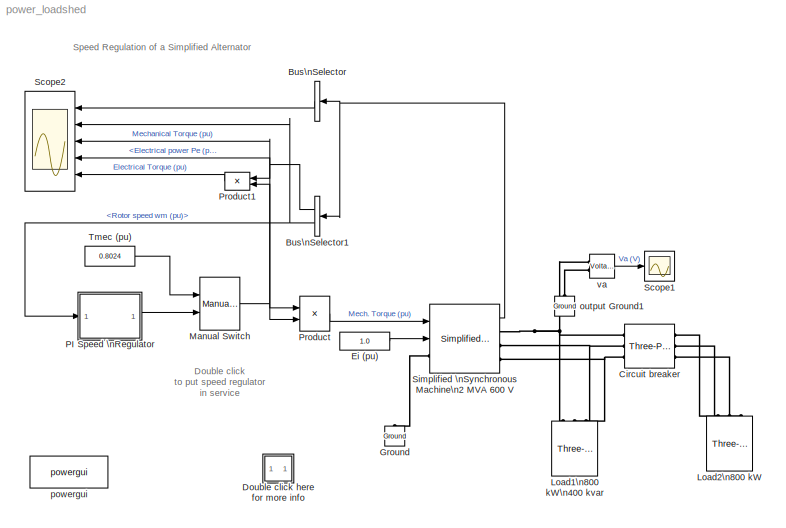
MODEL power_loadshed
KIND model
BLOCK [BusSelector] Bus\nSelector
  DialogController = Simulink.DDGSource_Bus
  MuxedOutput = on
  OutputSignals = Stator current is_a (pu),Stator current is_b (pu),Stator current is_c (pu)
  Ports = [1, 1]
BLOCK [BusSelector] Bus\nSelector1
  DialogController = Simulink.DDGSource_Bus
  OutputSignals = Electrical power Pe (pu),Rotor speed wm (pu)
  Ports = [1, 2]
BLOCK [Reference] Circuit breaker  REF=powerlib/Elements/Three-Phase Breaker
  AttributesFormatString = \\n
  BreakerResistance = 1e-4
  External = off
  InitialState = closed
  Measurements = None
  Ports = [0, 0, 0, 0, 0, 3, 3]
  ShowPortLabels = on
  SnubberCapacitance = 0
  SnubberResistance = inf
  SourceBlock = powerlib/Elements/Three-Phase Breaker
  SourceType = Three-Phase Breaker
  SwitchA = on
  SwitchB = on
  SwitchC = on
  SwitchTimes = [ 0.2 0.7*100 ]
BLOCK [SubSystem] Double click here for more info
  MaskDisplay = disp('?')
  MaskIconFrame = on
  MaskIconOpaque = on
  MaskIconRotate = none
  MaskIconUnits = autoscale
  MinAlgLoopOccurrences = off
  Ports = []
  RTWSystemCode = Auto
  TreatAsAtomicUnit = off
BLOCK [Constant] Ei (pu)
  Value = 1.0
BLOCK [Reference] Ground  REF=powerlib/Elements/Ground
  AttributesFormatString = \\n
  LConnTagsString = a
  LeftPortType = p1
  PhysicalDomain = powersysdomain
  Ports = [0, 0, 0, 0, 0, 1]
  RightPortType = p1
  SourceBlock = powerlib/Elements/Ground
  SourceType = Ground
  SubClassName = unknown
BLOCK [Reference] Load1\n800 kW\n400 kvar  REF=powerlib/Elements/Three-Phase\nParallel RLC Load
  ActivePower = 800e3
  AttributesFormatString = \\n
  CapacitivePower = 0
  Configuration = Y (grounded)
  InductivePower = 400e3
  LConnTagsString = A|B|C
  LeftPortType = p1
  Measurements = None
  NominalFrequency = 60
  NominalVoltage = 600
  PhysicalDomain = powersysdomain
  Ports = [0, 0, 0, 0, 0, 3]
  RightPortType = p1
  SourceBlock = powerlib/Elements/Three-Phase\nParallel RLC Load
  SourceType = Three-Phase Parallel RLC Load
  SubClassName = unknown
BLOCK [Reference] Load2\n800 kW  REF=powerlib/Elements/Three-Phase\nParallel RLC Load
  ActivePower = 800e3
  AttributesFormatString = \\n
  CapacitivePower = 0
  Configuration = Y (grounded)
  InductivePower = 0
  LConnTagsString = A|B|C
  LeftPortType = p1
  Measurements = None
  NominalFrequency = 60
  NominalVoltage = 600
  PhysicalDomain = powersysdomain
  Ports = [0, 0, 0, 0, 0, 3]
  RightPortType = p1
  SourceBlock = powerlib/Elements/Three-Phase\nParallel RLC Load
  SourceType = Three-Phase Parallel RLC Load
  SubClassName = unknown
BLOCK [Reference] Manual Switch  REF=simulink/Signal\nRouting/Manual Switch
  Ports = [2, 1]
  ShowPortLabels = on
  SourceBlock = simulink/Signal\nRouting/Manual Switch
  SourceType = Manual Switch
  action = 0
  sw = 0
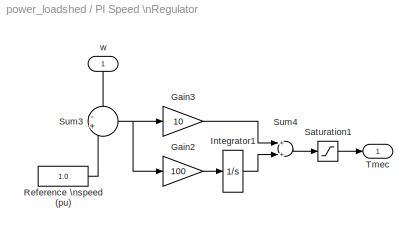
BLOCK [SubSystem] PI Speed \nRegulator
  MinAlgLoopOccurrences = off
  Ports = [1, 1]
  RTWSystemCode = Auto
  TreatAsAtomicUnit = off
BLOCK [Gain] PI Speed \nRegulator/Gain2
  Gain = 100
BLOCK [Gain] PI Speed \nRegulator/Gain3
  Gain = 10
BLOCK [Integrator] PI Speed \nRegulator/Integrator1
  InitialCondition = 0.8024
  LimitOutput = on
  LowerSaturationLimit = 0
  Ports = [1, 1]
  UpperSaturationLimit = 1
  ZeroCross = off
BLOCK [Constant] PI Speed \nRegulator/Reference \nspeed (pu)
  Value = 1.0
BLOCK [Saturate] PI Speed \nRegulator/Saturation1
  LowerLimit = 0
  UpperLimit = 1
  ZeroCross = off
BLOCK [Sum] PI Speed \nRegulator/Sum3
  IconShape = round
  Inputs = -+
  Ports = [2, 1]
BLOCK [Sum] PI Speed \nRegulator/Sum4
  Ports = [2, 1]
BLOCK [Outport] PI Speed \nRegulator/Tmec
  BusOutputAsStruct = off
  IconDisplay = Port number
BLOCK [Inport] PI Speed \nRegulator/w
  IconDisplay = Port number
  LatchInput = off
  Port = 1
BLOCK [Product] Product
  Ports = [2, 1]
  RndMeth = Floor
BLOCK [Product] Product1
  Inputs = */
  Ports = [2, 1]
  RndMeth = Floor
BLOCK [Scope] Scope1 
  DataFormat = Structure
  LimitDataPoints = off
  NumInputPorts = 1
  Ports = [1]
  TimeRange = 2
  YMax = 1000
  YMin = -1000
  ZoomMode = yonly
BLOCK [Scope] Scope2
  DataFormat = Structure
  LimitDataPoints = off
  NumInputPorts = 5
  Ports = [5]
  SampleTime = 1/60
  TimeRange = 2
  YMax = 2~1.2~1~2~2
  YMin = -2~0.8~0.6~0~0
  ZoomMode = xonly
BLOCK [Reference] Simplified \nSynchronous Machine\n2 MVA 600 V  REF=powerlib/Machines/Simplified Synchronous\nMachine pu Units
  AttributesFormatString = \\n
  ConnectionType = 4-wire Y
  InitialConditions = [0 0  0 0 0    0  0  0]
  InternalRL = [ 0.0036  0.16 ]
  LoadFlowParameters = [2 0 0 0]
  Mechanical = [ 0.6 , 0.0, 2 ]
  NominalParameters = [  2000e3, 600, 60 ]
  Ports = [2, 1, 0, 0, 0, 1, 3]
  ShowPortLabels = on
  SourceBlock = powerlib/Machines/Simplified Synchronous\nMachine pu Units
  SourceType = Simplified Synchronous Machine
  Units = 0
BLOCK [Constant] Tmec (pu)
  Value = 0.8024
BLOCK [Reference] output Ground1  REF=powerlib/Elements/Ground
  AttributesFormatString = \\n
  LConnTagsString = a
  LeftPortType = p1
  PhysicalDomain = powersysdomain
  Ports = [0, 0, 0, 0, 0, 1]
  RightPortType = p1
  SourceBlock = powerlib/Elements/Ground
  SourceType = Ground
  SubClassName = unknown
BLOCK [Reference] powergui  REF=powerlib/powergui
  DisplayStyle = off
  Frange = [0:2:500]
  FreqAxis = off
  MaxFrequency = 1000
  Ports = []
  Priority = 2
  RmsSteady = 1
  ShowPortLabels = on
  SourceBlock = powerlib/powergui
  SourceType = PSB option menu block
  StartTime = 0.0
  Ts = 0
  Xlog = on
  Ylog = off
  ZoomFFT = on
  cycles = 1
  display = off
  echomessages = on
  frequency = 60
  frequencyindice = 1
  frequencyindicesteady = 1
  fundamental = 60
  methode = off
  save = off
  variable = ZData
BLOCK [Reference] va  REF=powerlib/Measurements/Voltage Measurement
  AttributesFormatString = \\n
  OutputType = Magnitude
  PSBequivalent = 0
  PhasorSimulation = off
  Ports = [0, 1, 0, 0, 0, 2]
  ShowPortLabels = on
  SourceBlock = powerlib/Measurements/Voltage Measurement
  SourceType = Voltage Measurement
  Tag = PoWeRsYsTeMmEaSuReMeNt
ANNOTATION (root): Speed Regulation of a Simplified Alternator
ANNOTATION (root): Double click \nto put speed regulator\nin service\n
ANNOTATION Double click here for more info: 1. Initializing the machine to start in steady state
ANNOTATION Double click here for more info: 2. Simulation at constant torque - No speed regulator
ANNOTATION Double click here for more info: 3. Simulation with speed regulator
ANNOTATION Double click here for more info: A three-phase, four-wire alternator rated 2000 kVA, 1600 kW, 0.8 power factor, 600 V, 1800 rpm is connected to a 1600 kW, 400 kvar inductive load.\nThe stator neutral point is grounded. The internal impedance of the generator (Zg = 0.0036 + j*0.16 pu) represents the armature winding\nresistance Ra and direct axis transient reactance X'd. The total inertia constant of the generator and prime mover ...<+523ch>
ANNOTATION Double click here for more info: Circuit Description
ANNOTATION Double click here for more info: Demonstration
ANNOTATION Double click here for more info: G. Sybille (Hydro-Quebec)
ANNOTATION Double click here for more info: Make sure that the speed regulator is not in service (Manual Switch is in the upper position) . Start the simulation and observe signals on Scope2.\nThe three Iabc currents should start with steady-state sinusoidal waveforms. Observe that when the circuit breaker opens at t = 0.2 s, the electrical power (trace 4)\ndrops from 0.8 pu to 0.4 pu and that the machine starts to accelerate.The rate of sp...<+522ch>
ANNOTATION Double click here for more info: Now double click on the Manual Switch block in order to put the speed regulator in service. Restart the simulation and observe the dynamic response of the speed\nregulator on Scope 2. Notice that in order to maintain speed at its reference value (1 pu), the speed regulator has reduced the mechanical torque to 0.4 pu.
ANNOTATION Double click here for more info: Start simulation and observe the three machine currents on trace 1 of Scope2. If the 8 parameters defining initial conditions for the machine are left at zero or not set\ncorrectly, the simulation will not start in steady state. In order to start the simulation in steady-state you must first initialize the machine for the desired load flow. \n\nOpen the powergui and select 'Load Flow & Machine Ini...<+1337ch>
ANNOTATION Double click here for more info: This demonstration illustrates the use of the simplified alternator\nfor a load shedding test on a 2000 kVA, 600 V alternator.
ANNOTATION Double click here for more info: \n
NET Bus\nSelector1:1 -> Product1:1, Scope2:4
NET Bus\nSelector1:2 -> PI Speed \nRegulator:1, Product1:2, Product:2, Scope2:2
LINE Bus\nSelector:1 -> Scope2:1
LINE Ei (pu):1 -> Simplified \nSynchronous Machine\n2 MVA 600 V:2
NET Manual Switch:1 -> Product:1, Scope2:3
LINE PI Speed \nRegulator/Gain2:1 -> PI Speed \nRegulator/Integrator1:1
LINE PI Speed \nRegulator/Gain3:1 -> PI Speed \nRegulator/Sum4:1
LINE PI Speed \nRegulator/Integrator1:1 -> PI Speed \nRegulator/Sum4:2
LINE PI Speed \nRegulator/Reference \nspeed (pu):1 -> PI Speed \nRegulator/Sum3:2
LINE PI Speed \nRegulator/Saturation1:1 -> PI Speed \nRegulator/Tmec:1
NET PI Speed \nRegulator/Sum3:1 -> PI Speed \nRegulator/Gain2:1, PI Speed \nRegulator/Gain3:1
LINE PI Speed \nRegulator/Sum4:1 -> PI Speed \nRegulator/Saturation1:1
LINE PI Speed \nRegulator/w:1 -> PI Speed \nRegulator/Sum3:1
LINE PI Speed \nRegulator:1 -> Manual Switch:2
LINE Product1:1 -> Scope2:5
LINE Product:1 -> Simplified \nSynchronous Machine\n2 MVA 600 V:1
NET Simplified \nSynchronous Machine\n2 MVA 600 V:1 -> Bus\nSelector1:1, Bus\nSelector:1
LINE Tmec (pu):1 -> Manual Switch:1
LINE va:1 -> Scope1 :1
PNET net1: Circuit breaker:LConn1 -- Load1\n800 kW\n400 kvar:LConn1 -- Simplified \nSynchronous Machine\n2 MVA 600 V:RConn1 -- va:LConn1
PNET net2: Circuit breaker:LConn2 -- Load1\n800 kW\n400 kvar:LConn2 -- Simplified \nSynchronous Machine\n2 MVA 600 V:RConn2
PNET net3: Circuit breaker:LConn3 -- Load1\n800 kW\n400 kvar:LConn3 -- Simplified \nSynchronous Machine\n2 MVA 600 V:RConn3
PLINE Circuit breaker:RConn1 -- Load2\n800 kW:LConn1
PLINE Circuit breaker:RConn2 -- Load2\n800 kW:LConn2
PLINE Circuit breaker:RConn3 -- Load2\n800 kW:LConn3
PLINE Ground:LConn1 -- Simplified \nSynchronous Machine\n2 MVA 600 V:LConn1
PLINE output Ground1:LConn1 -- va:LConn2
note: NET lines group one-source signal fan-out (src -> all destinations, sorted); 1:1 wires keep LINE; PNET lines group multi-terminal physical nets as a canonical sorted terminal list (undirected conserving connections); 2-terminal nets keep the pairwise PLINE form
